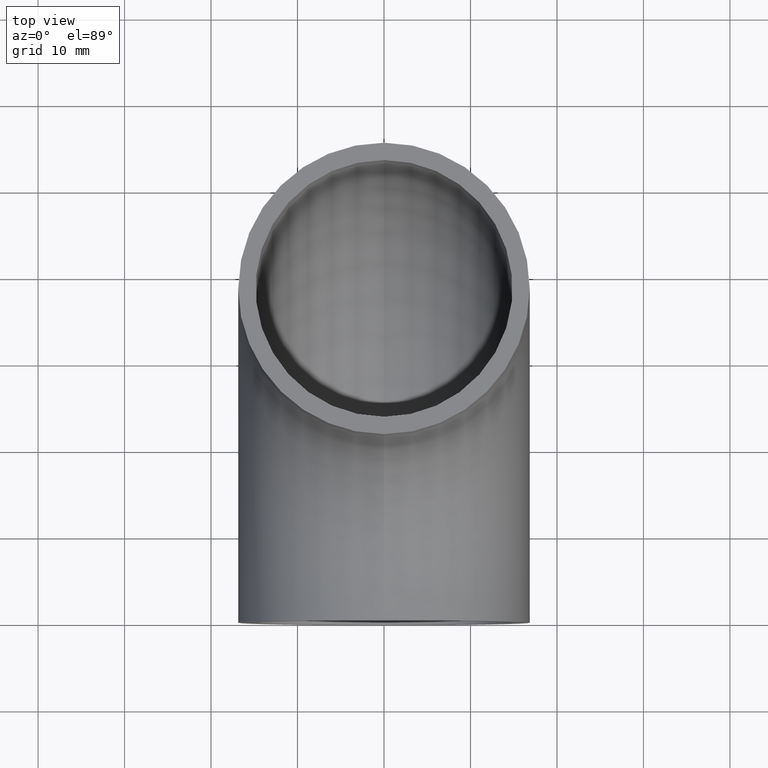
[diagram: clean part render]
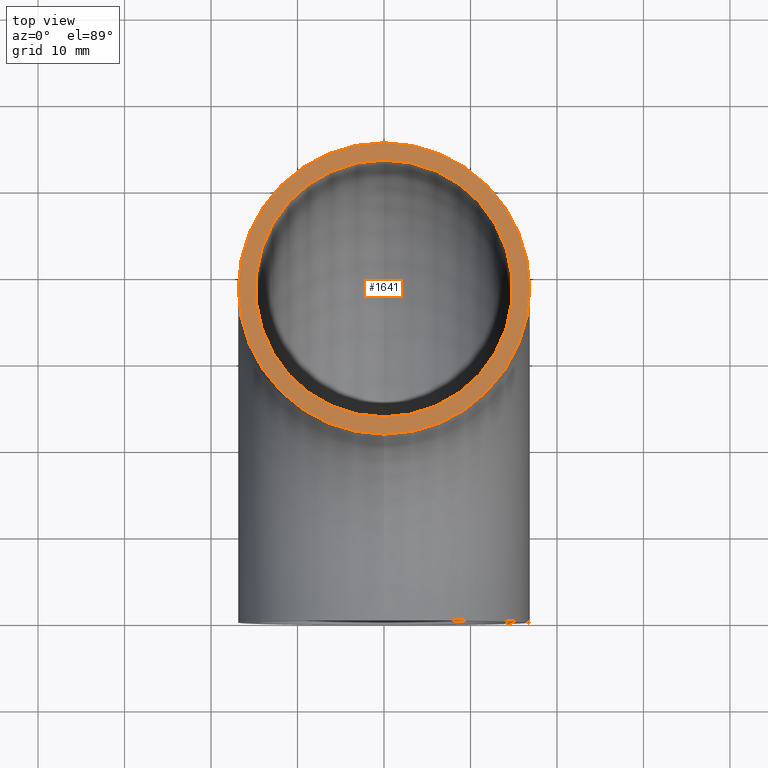
[diagram: same view with one face highlighted and labeled with its STEP entity id]
A machine part, top view. The second image highlights one B-rep face of the part: STEP entity #1641.
In plain terms, the highlighted planar face has unit normal (0, 0, 1).
Its self-contained STEP definition (entity closure, byte-faithful):
#758 = CARTESIAN_POINT ( 'NONE',  ( 0.0000000000000000000, 21.14999999999999900, -1.295063990098325800E-015 ) ) ;
#789 = ORIENTED_EDGE ( 'NONE', *, *, #10659, .F. ) ;
#892 = CIRCLE ( 'NONE', #10360, 14.85000000000000100 ) ;
#1092 = DIRECTION ( 'NONE',  ( 0.0000000000000000000, 6.123233995736766000E-017, 1.000000000000000000 ) ) ;
#1568 = ORIENTED_EDGE ( 'NONE', *, *, #10156, .T. ) ;
#1641 = ADVANCED_FACE ( 'NONE', ( #1811, #11331 ), #11075, .T. ) ;
#1811 = FACE_BOUND ( 'NONE', #3282, .T. ) ;
#2501 = AXIS2_PLACEMENT_3D ( 'NONE', #9151, #3767, #7437 ) ;
#2686 = CARTESIAN_POINT ( 'NONE',  ( 0.0000000000000000000, 38.00000000000000000, -2.326828918379971000E-015 ) ) ;
#2932 = DIRECTION ( 'NONE',  ( 0.0000000000000000000, -1.000000000000000000, 6.123233995736766000E-017 ) ) ;
#3050 = CIRCLE ( 'NONE', #3869, 16.85000000000000100 ) ;
#3282 = EDGE_LOOP ( 'NONE', ( #6714, #789 ) ) ;
#3767 = DIRECTION ( 'NONE',  ( 0.0000000000000000000, 6.123233995736766000E-017, 1.000000000000000000 ) ) ;
#3869 = AXIS2_PLACEMENT_3D ( 'NONE', #9588, #11319, #5012 ) ;
#3873 = CARTESIAN_POINT ( 'NONE',  ( 0.0000000000000000000, 38.00000000000000000, -2.326828918379971000E-015 ) ) ;
#4127 = CARTESIAN_POINT ( 'NONE',  ( 0.0000000000000000000, 54.84999999999999400, -3.358593846661615700E-015 ) ) ;
#4445 = EDGE_CURVE ( 'NONE', #10713, #8663, #7691, .T. ) ;
#4601 = CARTESIAN_POINT ( 'NONE',  ( 0.0000000000000000000, 38.00000000000000000, -2.326828918379971000E-015 ) ) ;
#5012 = DIRECTION ( 'NONE',  ( 0.0000000000000000000, -1.000000000000000000, 6.123233995736766000E-017 ) ) ;
#6483 = ORIENTED_EDGE ( 'NONE', *, *, #4445, .T. ) ;
#6693 = CARTESIAN_POINT ( 'NONE',  ( 0.0000000000000000000, 52.85000000000000100, -3.236129166746880900E-015 ) ) ;
#6714 = ORIENTED_EDGE ( 'NONE', *, *, #8505, .F. ) ;
#7293 = CARTESIAN_POINT ( 'NONE',  ( 0.0000000000000000000, 23.14999999999999900, -1.417528670013061000E-015 ) ) ;
#7437 = DIRECTION ( 'NONE',  ( 0.0000000000000000000, -1.000000000000000000, 6.123233995736766000E-017 ) ) ;
#7463 = DIRECTION ( 'NONE',  ( 0.0000000000000000000, -1.000000000000000000, 6.123233995736767300E-017 ) ) ;
#7691 = CIRCLE ( 'NONE', #8400, 16.85000000000000100 ) ;
#8263 = AXIS2_PLACEMENT_3D ( 'NONE', #2686, #9155, #10071 ) ;
#8382 = VERTEX_POINT ( 'NONE', #7293 ) ;
#8400 = AXIS2_PLACEMENT_3D ( 'NONE', #3873, #1092, #2932 ) ;
#8505 = EDGE_CURVE ( 'NONE', #8382, #9769, #11715, .T. ) ;
#8663 = VERTEX_POINT ( 'NONE', #4127 ) ;
#9151 = CARTESIAN_POINT ( 'NONE',  ( 0.0000000000000000000, 38.00000000000000000, -2.326828918379971000E-015 ) ) ;
#9155 = DIRECTION ( 'NONE',  ( 0.0000000000000000000, 6.123233995736766000E-017, 1.000000000000000000 ) ) ;
#9588 = CARTESIAN_POINT ( 'NONE',  ( 0.0000000000000000000, 38.00000000000000000, -2.326828918379971000E-015 ) ) ;
#9769 = VERTEX_POINT ( 'NONE', #6693 ) ;
#10071 = DIRECTION ( 'NONE',  ( 0.0000000000000000000, -1.000000000000000000, 6.123233995736767300E-017 ) ) ;
#10156 = EDGE_CURVE ( 'NONE', #8663, #10713, #3050, .T. ) ;
#10360 = AXIS2_PLACEMENT_3D ( 'NONE', #4601, #11059, #7463 ) ;
#10659 = EDGE_CURVE ( 'NONE', #9769, #8382, #892, .T. ) ;
#10713 = VERTEX_POINT ( 'NONE', #758 ) ;
#10893 = EDGE_LOOP ( 'NONE', ( #6483, #1568 ) ) ;
#11059 = DIRECTION ( 'NONE',  ( 0.0000000000000000000, 6.123233995736766000E-017, 1.000000000000000000 ) ) ;
#11075 = PLANE ( 'NONE',  #2501 ) ;
#11319 = DIRECTION ( 'NONE',  ( 0.0000000000000000000, 6.123233995736766000E-017, 1.000000000000000000 ) ) ;
#11331 = FACE_OUTER_BOUND ( 'NONE', #10893, .T. ) ;
#11715 = CIRCLE ( 'NONE', #8263, 14.85000000000000100 ) ;